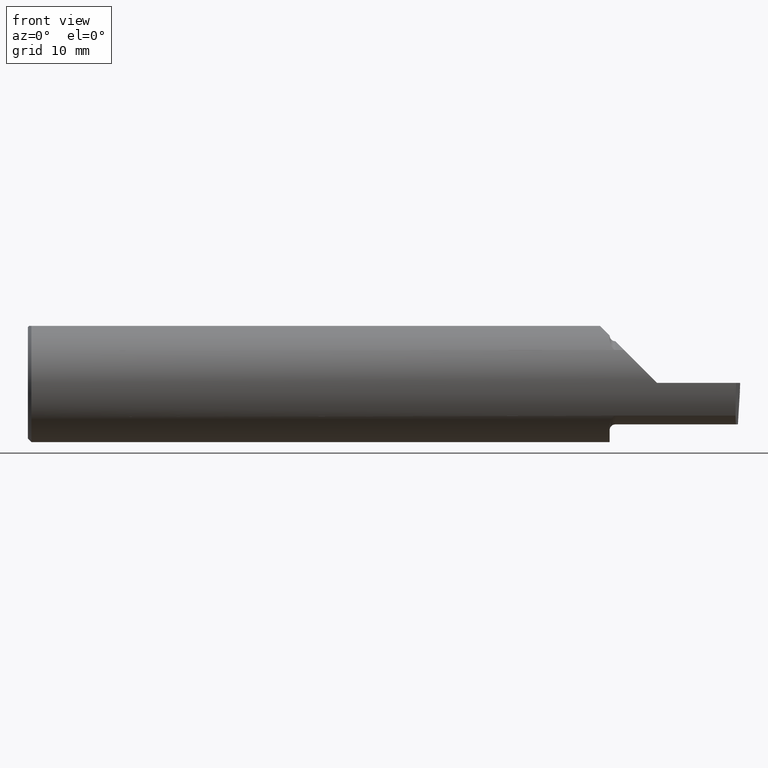
[diagram: clean part render]
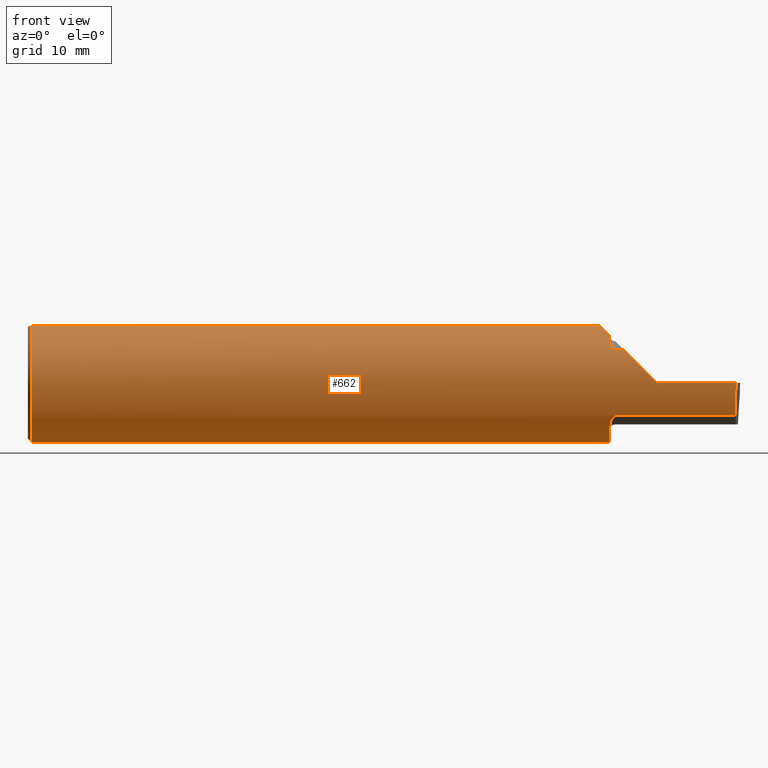
[diagram: same view with one face highlighted and labeled with its STEP entity id]
A machine part, front view. The second image highlights one B-rep face of the part: STEP entity #662.
In plain terms, the highlighted cylindrical surface (partial cylindrical patch) has radius 6.3462 mm, axis along (-1, -0, -0).
Its self-contained STEP definition (entity closure, byte-faithful):
#2 = DIRECTION ( 'NONE',  ( 1.000000000000000000, 0.000000000000000000, 0.000000000000000000 ) ) ;
#5 = EDGE_CURVE ( 'NONE', #783, #781, #539, .T. ) ;
#13 = ORIENTED_EDGE ( 'NONE', *, *, #312, .F. ) ;
#21 = LINE ( 'NONE', #538, #751 ) ;
#22 = CARTESIAN_POINT ( 'NONE',  ( 2.450000000000001066, -0.1716188362992555061, -0.1820560320165480750 ) ) ;
#25 = CARTESIAN_POINT ( 'NONE',  ( 2.468876997637615478, -0.2068363917296600629, 0.1401586554522228911 ) ) ;
#35 = DIRECTION ( 'NONE',  ( -1.000000000000000000, -0.000000000000000000, -0.000000000000000000 ) ) ;
#45 = CARTESIAN_POINT ( 'NONE',  ( 2.418565128400055997, 0.09882123526961378301, 0.2314348715999461070 ) ) ;
#55 =( BOUNDED_CURVE ( )  B_SPLINE_CURVE ( 3, ( #495, #119, #168, #571 ),
 .UNSPECIFIED., .F., .T. ) 
 B_SPLINE_CURVE_WITH_KNOTS ( ( 4, 4 ),
 ( 5.640485106395844106, 5.999305444832164547 ),
 .UNSPECIFIED. ) 
 CURVE ( )  GEOMETRIC_REPRESENTATION_ITEM ( )  RATIONAL_B_SPLINE_CURVE ( ( 1.000000000000000000, 0.9892994125303242736, 0.9892994125303242736, 1.000000000000000000 ) ) 
 REPRESENTATION_ITEM ( '' )  );
#56 = CARTESIAN_POINT ( 'NONE',  ( 2.650000000000000355, -0.2498499999999999610, 4.286263797015727350E-17 ) ) ;
#59 = EDGE_CURVE ( 'NONE', #483, #630, #55, .T. ) ;
#74 = CARTESIAN_POINT ( 'NONE',  ( 2.650000000000000355, -0.2498499999999999610, 4.286263797015727350E-17 ) ) ;
#79 = CARTESIAN_POINT ( 'NONE',  ( 2.450000000000000178, -0.1616050818046604332, -0.1905487340154980169 ) ) ;
#87 = DIRECTION ( 'NONE',  ( 1.000000000000000000, 0.000000000000000000, 0.000000000000000000 ) ) ;
#90 = B_SPLINE_CURVE_WITH_KNOTS ( 'NONE', 3,
 ( #413, #789, #785, #733, #774, #294, #418, #719, #532, #407, #22, #79 ),
 .UNSPECIFIED., .F., .F.,
 ( 4, 2, 2, 2, 2, 4 ),
 ( 1.964491429111597470E-07, 0.0001260981470478301006, 0.0002519998449527490283, 0.0005038032407626139887, 0.001007410032382344885, 0.002014623615621811883 ),
 .UNSPECIFIED. ) ;
#96 = CARTESIAN_POINT ( 'NONE',  ( 2.450000000000000178, -0.1616050818046604332, 0.1905487340154980169 ) ) ;
#109 = ORIENTED_EDGE ( 'NONE', *, *, #569, .T. ) ;
#113 = CARTESIAN_POINT ( 'NONE',  ( 2.410150000000002013, 0.06997856814768359246, 0.2398500000000000076 ) ) ;
#114 = AXIS2_PLACEMENT_3D ( 'NONE', #177, #304, #631 ) ;
#119 = CARTESIAN_POINT ( 'NONE',  ( 2.431992138630819422, -0.1256992788918502302, 0.2180078613691825984 ) ) ;
#126 = CARTESIAN_POINT ( 'NONE',  ( 2.511704467739034552, -0.2080850024789292485, 0.1382955322609664139 ) ) ;
#128 =( BOUNDED_CURVE ( )  B_SPLINE_CURVE ( 3, ( #113, #45, #293, #489 ),
 .UNSPECIFIED., .F., .T. ) 
 B_SPLINE_CURVE_WITH_KNOTS ( ( 4, 4 ),
 ( 0.2838798623474212968, 0.6427002007837423481 ),
 .UNSPECIFIED. ) 
 CURVE ( )  GEOMETRIC_REPRESENTATION_ITEM ( )  RATIONAL_B_SPLINE_CURVE ( ( 1.000000000000000000, 0.9892994125303242736, 0.9892994125303242736, 1.000000000000000000 ) ) 
 REPRESENTATION_ITEM ( '' )  );
#130 = CARTESIAN_POINT ( 'NONE',  ( 2.410150000000002013, 0.06997856814768359246, 0.2398500000000000076 ) ) ;
#141 = CIRCLE ( 'NONE', #478, 0.2498499999999999888 ) ;
#142 = LINE ( 'NONE', #656, #436 ) ;
#144 = VERTEX_POINT ( 'NONE', #710 ) ;
#145 = FACE_OUTER_BOUND ( 'NONE', #277, .T. ) ;
#157 = CARTESIAN_POINT ( 'NONE',  ( 2.456159563508733878, -0.1933019864360849549, 0.1584298865564831293 ) ) ;
#168 = CARTESIAN_POINT ( 'NONE',  ( 2.418565128400055997, -0.09882123526961388016, 0.2314348715999460515 ) ) ;
#174 = ORIENTED_EDGE ( 'NONE', *, *, #792, .F. ) ;
#177 = CARTESIAN_POINT ( 'NONE',  ( 2.450000000000000178, 0.000000000000000000, 0.000000000000000000 ) ) ;
#180 = CARTESIAN_POINT ( 'NONE',  ( 0.01499999999999999944, 0.000000000000000000, 0.000000000000000000 ) ) ;
#183 = DIRECTION ( 'NONE',  ( 0.02616100201822768243, -0.0009135623211515302069, 0.9996573249755575929 ) ) ;
#185 = CARTESIAN_POINT ( 'NONE',  ( 2.982632426700503103, -0.2498495826666993769, -0.0004566631977228521443 ) ) ;
#193 = EDGE_CURVE ( 'NONE', #215, #281, #450, .T. ) ;
#194 = AXIS2_PLACEMENT_3D ( 'NONE', #582, #2, #389 ) ;
#203 = CARTESIAN_POINT ( 'NONE',  ( 2.458182335268384477, -0.1972192205116131691, 0.1535061413537209818 ) ) ;
#207 = ORIENTED_EDGE ( 'NONE', *, *, #258, .F. ) ;
#208 = CARTESIAN_POINT ( 'NONE',  ( 2.473329956043142985, -0.2080850024798590603, 0.1382955322595675329 ) ) ;
#211 = EDGE_CURVE ( 'NONE', #790, #404, #384, .T. ) ;
#215 = VERTEX_POINT ( 'NONE', #130 ) ;
#218 = DIRECTION ( 'NONE',  ( -1.000000000000000000, -0.000000000000000000, -0.000000000000000000 ) ) ;
#220 = VERTEX_POINT ( 'NONE', #522 ) ;
#238 = VECTOR ( 'NONE', #385, 39.37007874015748143 ) ;
#243 = CARTESIAN_POINT ( 'NONE',  ( 2.981341028891338674, -0.2497592792593448796, -0.04986346618385834734 ) ) ;
#254 = ORIENTED_EDGE ( 'NONE', *, *, #342, .F. ) ;
#255 = CARTESIAN_POINT ( 'NONE',  ( 2.511704467739034552, -0.2080850024789292485, 0.1382955322609664139 ) ) ;
#258 = EDGE_CURVE ( 'NONE', #483, #144, #572, .T. ) ;
#273 = DIRECTION ( 'NONE',  ( 0.000000000000000000, 0.000000000000000000, 1.000000000000000000 ) ) ;
#277 = EDGE_LOOP ( 'NONE', ( #409, #462, #109, #366, #280, #207, #786, #13, #351, #174, #712, #597, #435, #254, #690, #747 ) ) ;
#280 = ORIENTED_EDGE ( 'NONE', *, *, #643, .F. ) ;
#281 = VERTEX_POINT ( 'NONE', #480 ) ;
#293 = CARTESIAN_POINT ( 'NONE',  ( 2.431992138630819422, 0.1256992788918501747, 0.2180078613691826261 ) ) ;
#294 = CARTESIAN_POINT ( 'NONE',  ( 2.464302603425053029, -0.2041009206016214106, -0.1441313430770037873 ) ) ;
#304 = DIRECTION ( 'NONE',  ( 1.000000000000000000, 0.000000000000000000, 0.000000000000000000 ) ) ;
#312 = EDGE_CURVE ( 'NONE', #404, #630, #465, .T. ) ;
#315 = CARTESIAN_POINT ( 'NONE',  ( 2.977412177158956563, -0.2496672875357696664, -0.1999314649951114686 ) ) ;
#328 = B_SPLINE_CURVE_WITH_KNOTS ( 'NONE', 3,
 ( #96, #773, #709, #718, #728, #157, #203, #524, #460, #531, #25, #341, #208, #401 ),
 .UNSPECIFIED., .F., .F.,
 ( 4, 2, 2, 2, 2, 2, 4 ),
 ( 0.0003834465838148164922, 0.0008781406165086649927, 0.001372834649202513656, 0.001867528681896362319, 0.002114875698243290879, 0.002238549206416755484, 0.002362222714590220523 ),
 .UNSPECIFIED. ) ;
#331 = CARTESIAN_POINT ( 'NONE',  ( 4.499279347985559139E-32, -0.2498499999999999610, 3.673940397442053459E-16 ) ) ;
#341 = CARTESIAN_POINT ( 'NONE',  ( 2.471718393013769166, -0.2077830475237241181, 0.1387513848711936504 ) ) ;
#342 = EDGE_CURVE ( 'NONE', #362, #220, #90, .T. ) ;
#351 = ORIENTED_EDGE ( 'NONE', *, *, #211, .F. ) ;
#362 = VERTEX_POINT ( 'NONE', #540 ) ;
#366 = ORIENTED_EDGE ( 'NONE', *, *, #707, .F. ) ;
#384 = CIRCLE ( 'NONE', #553, 0.2498499999999999888 ) ;
#385 = DIRECTION ( 'NONE',  ( -1.000000000000000000, -0.000000000000000000, -0.000000000000000000 ) ) ;
#389 = DIRECTION ( 'NONE',  ( 0.000000000000000000, 0.000000000000000000, -1.000000000000000000 ) ) ;
#394 = CARTESIAN_POINT ( 'NONE',  ( 0.01499999999999999944, 0.000000000000000000, 0.000000000000000000 ) ) ;
#401 = CARTESIAN_POINT ( 'NONE',  ( 2.475000000000000089, -0.2080850024789292485, 0.1382955322609664972 ) ) ;
#404 = VERTEX_POINT ( 'NONE', #745 ) ;
#407 = CARTESIAN_POINT ( 'NONE',  ( 2.451385488563270432, -0.1808287530430327805, -0.1728790649396285684 ) ) ;
#409 = ORIENTED_EDGE ( 'NONE', *, *, #487, .T. ) ;
#413 = CARTESIAN_POINT ( 'NONE',  ( 2.475000000000000089, -0.2080850024789291375, -0.1382955322609665805 ) ) ;
#417 = DIRECTION ( 'NONE',  ( -1.000000000000000000, -0.000000000000000000, -0.000000000000000000 ) ) ;
#418 = CARTESIAN_POINT ( 'NONE',  ( 2.462579853086620307, -0.2024300470081736303, -0.1464774911482684960 ) ) ;
#426 = CARTESIAN_POINT ( 'NONE',  ( 2.475000000000000089, -0.2080850024789292485, 0.1382955322609664972 ) ) ;
#435 = ORIENTED_EDGE ( 'NONE', *, *, #475, .F. ) ;
#436 = VECTOR ( 'NONE', #417, 39.37007874015748143 ) ;
#450 = LINE ( 'NONE', #507, #238 ) ;
#459 = VERTEX_POINT ( 'NONE', #426 ) ;
#460 = CARTESIAN_POINT ( 'NONE',  ( 2.464343523383979218, -0.2041337200786084716, 0.1440846171672510168 ) ) ;
#462 = ORIENTED_EDGE ( 'NONE', *, *, #580, .T. ) ;
#465 = LINE ( 'NONE', #714, #708 ) ;
#468 = DIRECTION ( 'NONE',  ( 1.000000000000000000, 0.000000000000000000, 0.000000000000000000 ) ) ;
#469 = CIRCLE ( 'NONE', #114, 0.2498499999999999888 ) ;
#474 = CYLINDRICAL_SURFACE ( 'NONE', #556, 0.2498499999999999888 ) ;
#475 = EDGE_CURVE ( 'NONE', #220, #533, #469, .T. ) ;
#477 = VERTEX_POINT ( 'NONE', #56 ) ;
#478 = AXIS2_PLACEMENT_3D ( 'NONE', #180, #35, #552 ) ;
#479 = CARTESIAN_POINT ( 'NONE',  ( 2.980479240051444378, -0.2080850024789291652, -0.1382955322609665250 ) ) ;
#480 = CARTESIAN_POINT ( 'NONE',  ( 0.01499999999999998036, 0.06997856814768359246, 0.2398500000000000076 ) ) ;
#483 = VERTEX_POINT ( 'NONE', #798 ) ;
#487 = EDGE_CURVE ( 'NONE', #781, #616, #559, .T. ) ;
#489 = CARTESIAN_POINT ( 'NONE',  ( 2.450000000000000178, 0.1497498664440123362, 0.2000000000000012601 ) ) ;
#490 = CARTESIAN_POINT ( 'NONE',  ( 2.980602402804240381, -0.2354324170447371078, -0.09714751587400052846 ) ) ;
#495 = CARTESIAN_POINT ( 'NONE',  ( 2.450000000000000178, -0.1497498664440122806, 0.2000000000000012601 ) ) ;
#507 = CARTESIAN_POINT ( 'NONE',  ( 0.000000000000000000, 0.06997856814768359246, 0.2398500000000000076 ) ) ;
#522 = CARTESIAN_POINT ( 'NONE',  ( 2.450000000000000178, -0.1616050818046604332, -0.1905487340154980169 ) ) ;
#524 = CARTESIAN_POINT ( 'NONE',  ( 2.462616400345756240, -0.2024684335577102701, 0.1464246884265638093 ) ) ;
#531 = CARTESIAN_POINT ( 'NONE',  ( 2.467647060162628136, -0.2062109266231183791, 0.1410799729252288082 ) ) ;
#532 = CARTESIAN_POINT ( 'NONE',  ( 2.456147634408388125, -0.1932733126899461307, -0.1584637047788196862 ) ) ;
#533 = VERTEX_POINT ( 'NONE', #570 ) ;
#538 = CARTESIAN_POINT ( 'NONE',  ( 2.659000000000000252, -0.2080850024789291652, 0.1382955322609665250 ) ) ;
#539 =( BOUNDED_CURVE ( )  B_SPLINE_CURVE ( 3, ( #684, #490, #243, #185 ),
 .UNSPECIFIED., .F., .T. ) 
 B_SPLINE_CURVE_WITH_KNOTS ( ( 4, 4 ),
 ( 0.05713034791898981279, 0.6418805321924385687 ),
 .UNSPECIFIED. ) 
 CURVE ( )  GEOMETRIC_REPRESENTATION_ITEM ( )  RATIONAL_B_SPLINE_CURVE ( ( 1.000000000000000000, 0.9717080070095358568, 0.9717080070095358568, 1.000000000000000000 ) ) 
 REPRESENTATION_ITEM ( '' )  );
#540 = CARTESIAN_POINT ( 'NONE',  ( 2.475000000000000089, -0.2080850024789291375, -0.1382955322609665805 ) ) ;
#552 = DIRECTION ( 'NONE',  ( 0.000000000000000000, 0.000000000000000000, 1.000000000000000000 ) ) ;
#553 = AXIS2_PLACEMENT_3D ( 'NONE', #394, #576, #822 ) ;
#556 = AXIS2_PLACEMENT_3D ( 'NONE', #713, #218, #273 ) ;
#559 = LINE ( 'NONE', #315, #584 ) ;
#569 = EDGE_CURVE ( 'NONE', #477, #601, #588, .T. ) ;
#570 = CARTESIAN_POINT ( 'NONE',  ( 2.450000000000000178, 0.1497498664440123362, 0.2000000000000012601 ) ) ;
#571 = CARTESIAN_POINT ( 'NONE',  ( 2.410150000000002013, -0.06997856814768374512, 0.2398500000000000076 ) ) ;
#572 = CIRCLE ( 'NONE', #194, 0.2498499999999999888 ) ;
#576 = DIRECTION ( 'NONE',  ( -1.000000000000000000, -0.000000000000000000, -0.000000000000000000 ) ) ;
#578 = CARTESIAN_POINT ( 'NONE',  ( 2.982644377562602589, -0.2498499999999999610, 1.813681607540488003E-17 ) ) ;
#580 = EDGE_CURVE ( 'NONE', #616, #477, #760, .T. ) ;
#582 = CARTESIAN_POINT ( 'NONE',  ( 2.450000000000000178, 0.000000000000000000, 0.000000000000000000 ) ) ;
#584 = VECTOR ( 'NONE', #183, 39.37007874015748854 ) ;
#588 =( BOUNDED_CURVE ( )  B_SPLINE_CURVE ( 3, ( #74, #589, #823, #255 ),
 .UNSPECIFIED., .F., .F. ) 
 B_SPLINE_CURVE_WITH_KNOTS ( ( 4, 4 ),
 ( 4.712388980384689674, 5.298966915116346321 ),
 .UNSPECIFIED. ) 
 CURVE ( )  GEOMETRIC_REPRESENTATION_ITEM ( )  RATIONAL_B_SPLINE_CURVE ( ( 1.000000000000000000, 0.9715321379117538569, 0.9715321379117538569, 1.000000000000000000 ) ) 
 REPRESENTATION_ITEM ( '' )  );
#589 = CARTESIAN_POINT ( 'NONE',  ( 2.600434159100403875, -0.2498499999999999055, 0.04956584089959691769 ) ) ;
#597 = ORIENTED_EDGE ( 'NONE', *, *, #806, .T. ) ;
#601 = VERTEX_POINT ( 'NONE', #126 ) ;
#616 = VERTEX_POINT ( 'NONE', #578 ) ;
#630 = VERTEX_POINT ( 'NONE', #642 ) ;
#631 = DIRECTION ( 'NONE',  ( 0.000000000000000000, 0.000000000000000000, -1.000000000000000000 ) ) ;
#642 = CARTESIAN_POINT ( 'NONE',  ( 2.410150000000002013, -0.06997856814768374512, 0.2398500000000000076 ) ) ;
#643 = EDGE_CURVE ( 'NONE', #144, #459, #328, .T. ) ;
#656 = CARTESIAN_POINT ( 'NONE',  ( 2.659000000000000252, -0.2080850024789291652, -0.1382955322609665250 ) ) ;
#662 = ADVANCED_FACE ( 'NONE', ( #145 ), #474, .T. ) ;
#667 = EDGE_CURVE ( 'NONE', #783, #362, #142, .T. ) ;
#684 = CARTESIAN_POINT ( 'NONE',  ( 2.980479240051444378, -0.2080850024789291652, -0.1382955322609665250 ) ) ;
#686 = CARTESIAN_POINT ( 'NONE',  ( 2.982632426700503103, -0.2498495826666993769, -0.0004566631977228521443 ) ) ;
#690 = ORIENTED_EDGE ( 'NONE', *, *, #667, .F. ) ;
#705 = DIRECTION ( 'NONE',  ( -1.000000000000000000, -0.000000000000000000, -0.000000000000000000 ) ) ;
#707 = EDGE_CURVE ( 'NONE', #459, #601, #21, .T. ) ;
#708 = VECTOR ( 'NONE', #87, 39.37007874015748143 ) ;
#709 = CARTESIAN_POINT ( 'NONE',  ( 2.450367168219774516, -0.1713400252854603567, 0.1819601557798505576 ) ) ;
#710 = CARTESIAN_POINT ( 'NONE',  ( 2.450000000000000178, -0.1616050818046604332, 0.1905487340154980169 ) ) ;
#712 = ORIENTED_EDGE ( 'NONE', *, *, #193, .F. ) ;
#713 = CARTESIAN_POINT ( 'NONE',  ( 0.000000000000000000, 0.000000000000000000, 0.000000000000000000 ) ) ;
#714 = CARTESIAN_POINT ( 'NONE',  ( 0.000000000000000000, -0.06997856814768359246, 0.2398500000000000076 ) ) ;
#718 = CARTESIAN_POINT ( 'NONE',  ( 2.451849548162864600, -0.1805300287242674606, 0.1728462070311780341 ) ) ;
#719 = CARTESIAN_POINT ( 'NONE',  ( 2.458176740666625282, -0.1972027065478073882, -0.1535263573771913359 ) ) ;
#728 = CARTESIAN_POINT ( 'NONE',  ( 2.452968662030529323, -0.1849684355203378150, 0.1680843977756267538 ) ) ;
#733 = CARTESIAN_POINT ( 'NONE',  ( 2.468863362722769406, -0.2068301641248769807, -0.1401678546132361369 ) ) ;
#745 = CARTESIAN_POINT ( 'NONE',  ( 0.01499999999999999944, -0.06997856814768359246, 0.2398500000000000076 ) ) ;
#747 = ORIENTED_EDGE ( 'NONE', *, *, #5, .T. ) ;
#751 = VECTOR ( 'NONE', #468, 39.37007874015748143 ) ;
#760 = LINE ( 'NONE', #331, #763 ) ;
#763 = VECTOR ( 'NONE', #705, 39.37007874015748143 ) ;
#773 = CARTESIAN_POINT ( 'NONE',  ( 2.450000000000000178, -0.1665641037263009827, 0.1863429692936361126 ) ) ;
#774 = CARTESIAN_POINT ( 'NONE',  ( 2.467611663768900510, -0.2061921161193831231, -0.1411075319999375854 ) ) ;
#781 = VERTEX_POINT ( 'NONE', #686 ) ;
#783 = VERTEX_POINT ( 'NONE', #479 ) ;
#785 = CARTESIAN_POINT ( 'NONE',  ( 2.471700027347578654, -0.2077785947292768165, -0.1387580622202825298 ) ) ;
#786 = ORIENTED_EDGE ( 'NONE', *, *, #59, .T. ) ;
#789 = CARTESIAN_POINT ( 'NONE',  ( 2.473318040126430528, -0.2080850024789291097, -0.1382955322609666915 ) ) ;
#790 = VERTEX_POINT ( 'NONE', #802 ) ;
#792 = EDGE_CURVE ( 'NONE', #281, #790, #141, .T. ) ;
#798 = CARTESIAN_POINT ( 'NONE',  ( 2.450000000000000178, -0.1497498664440122806, 0.2000000000000012601 ) ) ;
#802 = CARTESIAN_POINT ( 'NONE',  ( 0.01499999999999999944, 0.000000000000000000, -0.2498499999999999888 ) ) ;
#806 = EDGE_CURVE ( 'NONE', #215, #533, #128, .T. ) ;
#822 = DIRECTION ( 'NONE',  ( 0.000000000000000000, 0.000000000000000000, 1.000000000000000000 ) ) ;
#823 = CARTESIAN_POINT ( 'NONE',  ( 2.552984868485333347, -0.2355204011147992438, 0.09701513151466735485 ) ) ;